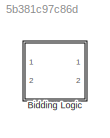
MODEL slx_5b381c97c86d
KIND library
CONFIG AbsTol = auto
CONFIG EnableMultiTasking = off
CONFIG FixedStep = auto
CONFIG MaxStep = auto
CONFIG MinStep = auto
CONFIG RelTol = 1e-3
CONFIG SampleTimeConstraint = Unconstrained
CONFIG Solver = ode45
CONFIG SolverName = ode45
CONFIG StartTime = 0.0
CONFIG StopTime = 10.0
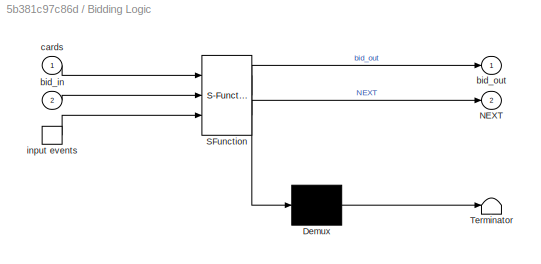
BLOCK [SubSystem] Bidding Logic
  ErrorFcn = Stateflow.Translate.translate
  PermitHierarchicalResolution = ExplicitOnly
  Ports = [2, 2, 0, 1]
  RequestExecContextInheritance = off
  SFBlockType = Chart
  TreatAsAtomicUnit = on
  Variant = off
BLOCK [Demux] Bidding Logic/ Demux 
  Outputs = 1
  Ports = [1, 1]
BLOCK [S-Function] Bidding Logic/ SFunction 
  EnableBusSupport = off
  FunctionName = sf_sfun
  PortCounts = [3 3]
  Ports = [3, 3]
  SFcnIsStateOwnerBlock = off
  SFunctionDeploymentMode = off
  Tag = Stateflow S-Function sf_bidder 1
BLOCK [Terminator] Bidding Logic/ Terminator 
BLOCK [TriggerPort] Bidding Logic/ input events 
  Ports = [0, 1]
  ShowOutputPort = on
  TriggerType = either
  VariantControl = (inherit)
BLOCK [Outport] Bidding Logic/NEXT
  IconDisplay = Port number
  Port = 2
BLOCK [Inport] Bidding Logic/bid_in
  IconDisplay = Port number
  Port = 2
BLOCK [Outport] Bidding Logic/bid_out
  IconDisplay = Port number
BLOCK [Inport] Bidding Logic/cards
  IconDisplay = Port number
CHART Bidding Logic states=2 transitions=70
  STATE_LABEL 'points = count_distribution(suit_count)'
  STATE_LABEL '[suit_count < 3] {points = 3-suit_count;}'
  STATE_LABEL '{points = 0;}'
  STATE_LABEL 'bid()'
  STATE_LABEL '{\n/* Open 1N */\naVarTruthTableCondition_1 = (point_count>=16&&point_count<=18);\n}'
  STATE_LABEL '{\n/* Open 2N */\naVarTruthTableCondition_2 = (point_count>=20);\n}'
  STATE_LABEL '{\n/* Open 2C */\naVarTruthTableCondition_3 = (total_points>=22);\n}'
  STATE_LABEL '{\n/* Opening Count */\naVarTruthTableCondition_4 = (total_points>=13);\n}'
  STATE_LABEL '{\n/* Premptable Count */\naVarTruthTableCondition_5 = (point_count>=6);\n}'
  STATE_LABEL '{\n/* Bid Spades */\naVarTruthTableCondition_6 = (spade_count >= 5);\n}'
  STATE_LABEL '{\n/* Bid Hearts */\naVarTruthTableCondition_7 = (heart_count >= 5);\n}'
  STATE_LABEL '{\n/* Bid Diamonds */\naVarTruthTableCondition_8 = (diamond_count >= 4);\n}'
  STATE_LABEL '{\n/* Preempt Spades */\naVarTruthTableCondition_9 = (spade_count >=6);\n}'
  STATE_LABEL '{\n/* Preempt Hearts */\naVarTruthTableCondition_10 = (heart_count >=6);\n}'
  STATE_LABEL '{\n/* Preempt Diamonds */\naVarTruthTableCondition_11 = (diamond_count >= 6);\n}'
  STATE_LABEL '{\n/* Even Distribution */\naVarTruthTableCondition_12 = (distribution_count <= 1);\n}'
  STATE_LABEL '[aVarTruthTableCondition_3 && !aVarTruthTableCondition_12]'
  STATE_LABEL '{\n/* Bid 2 */\nbid_out += 2;\n}'
  STATE_LABEL "{\n/* 'CLUBS':Bid Clubs */\nbid_out += club_mask;\n}"
  STATE_LABEL '[aVarTruthTableCondition_2 && aVarTruthTableCondition_12]'
  STATE_LABEL '{\n/* Bid 2 */\nbid_out += 2;\n}'
  STATE_LABEL "{\n/* 'NO_TRUMP':Bid No Trump */\nbid_out += no_trump_mask;\n}"
  STATE_LABEL '[aVarTruthTableCondition_1 && aVarTruthTableCondition_12]'
  STATE_LABEL '{\n/* Bid 1 */\nbid_out += 1;\n}'
  STATE_LABEL "{\n/* 'NO_TRUMP':Bid No Trump */\nbid_out += no_trump_mask;\n}"
  STATE_LABEL '[aVarTruthTableCondition_4 && aVarTruthTableCondition_6]'
  STATE_LABEL '{\n/* Bid 1 */\nbid_out += 1;\n}'
  STATE_LABEL "{\n/* 'SPADES':Bid Spades */\nbid_out += spade_mask;\n}"
  STATE_LABEL '[aVarTruthTableCondition_4 && aVarTruthTableCondition_7]'
  STATE_LABEL '{\n/* Bid 1 */\nbid_out += 1;\n}'
  STATE_LABEL "{\n/* 'HEARTS':Bid Hearts */\nbid_out += heart_mask;\n}"
  STATE_LABEL '[aVarTruthTableCondition_4 && aVarTruthTableCondition_8]'
  STATE_LABEL '{\n/* Bid 1 */\nbid_out += 1;\n}'
  STATE_LABEL "{\n/* 'DIAMONDS':Bid Diamonds */\nbid_out += diamond_mask;\n}"
  STATE_LABEL '[aVarTruthTableCondition_4]'
  STATE_LABEL '{\n/* Bid 1 */\nbid_out += 1;\n}'
  STATE_LABEL "{\n/* 'CLUBS':Bid Clubs */\nbid_out += club_mask;\n}"
  STATE_LABEL '[aVarTruthTableCondition_5 && aVarTruthTableCondition_9]'
  STATE_LABEL '{\n/* Bid 2 */\nbid_out += 2;\n}'
  STATE_LABEL "{\n/* 'SPADES':Bid Spades */\nbid_out += spade_mask;\n}"
